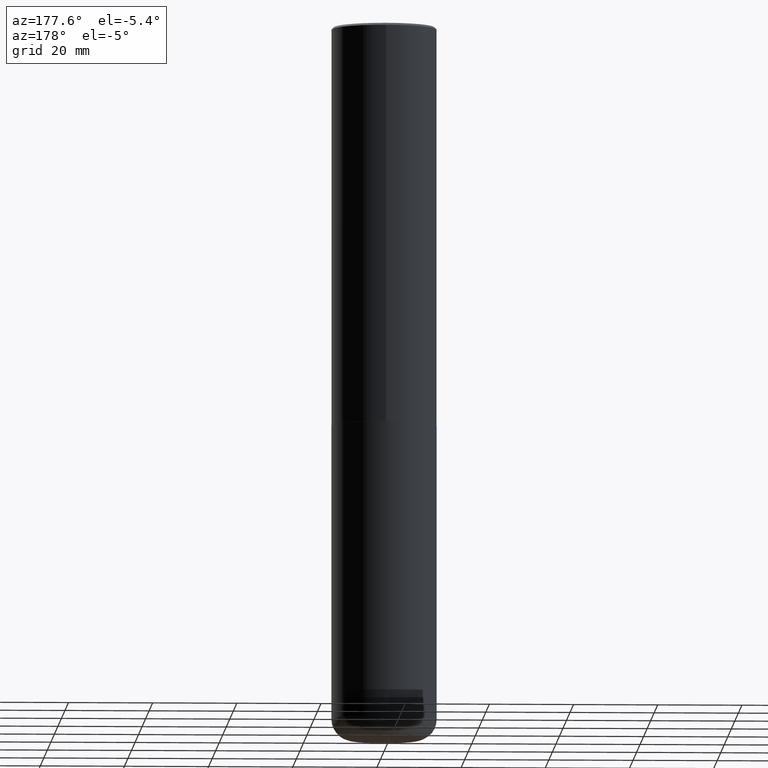
[diagram: clean part render]
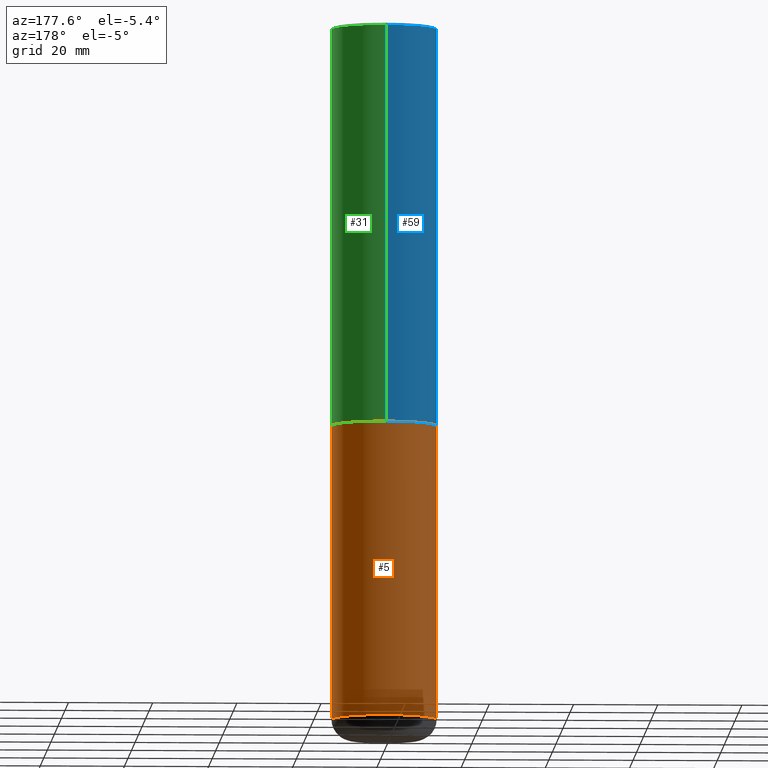
[diagram: same view with three faces highlighted in distinct colors, each labeled with its STEP entity id]
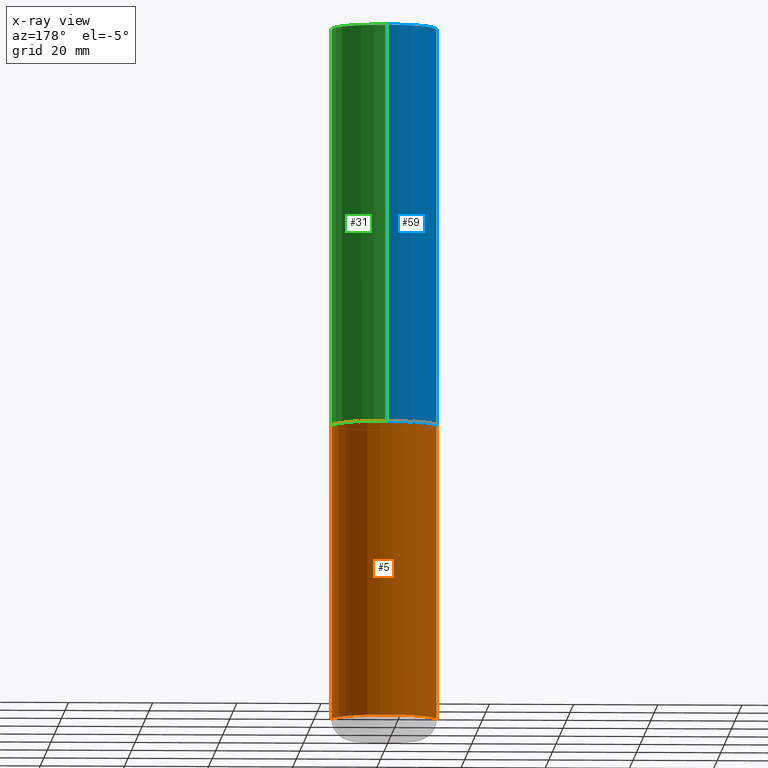
[diagram: x-ray of the same camera — body ghosted, the three highlighted faces saturated]
A machine part, auxiliary view with three faces highlighted in distinct colors.
The next image is the same camera in x-ray (body ghosted, the three faces saturated) — at least one of them is partly hidden behind the body in this view.
Their STEP definitions:

[orange] entity #5 — the highlighted cylindrical surface (partial cylindrical patch) has radius 12.5006 mm, axis along (-0, 0, 1).
#5 = ADVANCED_FACE ( 'NONE', ( #375 ), #343, .T. ) ;
#23 = EDGE_CURVE ( 'NONE', #236, #192, #254, .T. ) ;
#47 = ORIENTED_EDGE ( 'NONE', *, *, #182, .F. ) ;
#51 = DIRECTION ( 'NONE',  ( -2.445468806185136597E-29, 3.491481338843145583E-15, 1.000000000000000000 ) ) ;
#53 = CARTESIAN_POINT ( 'NONE',  ( 0.4921499999999999764, -3.436665081823295777E-15, 2.399810400207969603E-29 ) ) ;
#65 = DIRECTION ( 'NONE',  ( -2.445468806185136597E-29, 3.491481338843145583E-15, 1.000000000000000000 ) ) ;
#69 = DIRECTION ( 'NONE',  ( -2.445468806185136597E-29, 3.491481338843145583E-15, 1.000000000000000000 ) ) ;
#115 = CARTESIAN_POINT ( 'NONE',  ( -0.4921499999999997543, -1.918372670308173998E-14, -6.495999999999999552 ) ) ;
#132 = CARTESIAN_POINT ( 'NONE',  ( -0.4921499999999999764, -1.437263999222282936E-14, -3.740100000000000424 ) ) ;
#137 = DIRECTION ( 'NONE',  ( 1.000000000000000000, -6.982962677686265922E-15, 0.000000000000000000 ) ) ;
#139 = CIRCLE ( 'NONE', #168, 0.4921499999999999764 ) ;
#145 = EDGE_LOOP ( 'NONE', ( #369, #398, #47, #337 ) ) ;
#146 = AXIS2_PLACEMENT_3D ( 'NONE', #411, #51, #222 ) ;
#147 = CARTESIAN_POINT ( 'NONE',  ( 1.588576536497864771E-28, -2.268066277712507367E-14, -6.495999999999999552 ) ) ;
#160 = EDGE_CURVE ( 'NONE', #404, #178, #294, .T. ) ;
#165 = CARTESIAN_POINT ( 'NONE',  ( 0.4921499999999997543, -2.611732785894836787E-14, -6.495999999999999552 ) ) ;
#168 = AXIS2_PLACEMENT_3D ( 'NONE', #197, #65, #137 ) ;
#173 = AXIS2_PLACEMENT_3D ( 'NONE', #147, #69, #239 ) ;
#178 = VERTEX_POINT ( 'NONE', #132 ) ;
#182 = EDGE_CURVE ( 'NONE', #192, #178, #139, .T. ) ;
#185 = DIRECTION ( 'NONE',  ( -2.445468806185136877E-29, 3.491481338843145188E-15, 1.000000000000000000 ) ) ;
#192 = VERTEX_POINT ( 'NONE', #257 ) ;
#197 = CARTESIAN_POINT ( 'NONE',  ( 9.146297882013029477E-29, -1.305848935540725085E-14, -3.740100000000000424 ) ) ;
#222 = DIRECTION ( 'NONE',  ( 1.000000000000000000, -6.982962677686265922E-15, 4.876176775795935793E-29 ) ) ;
#229 = DIRECTION ( 'NONE',  ( -2.445468806185136877E-29, 3.491481338843145188E-15, 1.000000000000000000 ) ) ;
#236 = VERTEX_POINT ( 'NONE', #165 ) ;
#239 = DIRECTION ( 'NONE',  ( 1.000000000000000000, -6.982962677686265922E-15, 0.000000000000000000 ) ) ;
#254 = LINE ( 'NONE', #53, #417 ) ;
#257 = CARTESIAN_POINT ( 'NONE',  ( 0.4921499999999999764, -1.649515443723054663E-14, -3.740100000000000424 ) ) ;
#259 = VECTOR ( 'NONE', #229, 39.37007874015748143 ) ;
#291 = CARTESIAN_POINT ( 'NONE',  ( -0.4921499999999999764, 3.496936074043332897E-15, -2.420853904668951509E-29 ) ) ;
#294 = LINE ( 'NONE', #291, #259 ) ;
#337 = ORIENTED_EDGE ( 'NONE', *, *, #23, .F. ) ;
#343 = CYLINDRICAL_SURFACE ( 'NONE', #146, 0.4921499999999999764 ) ;
#369 = ORIENTED_EDGE ( 'NONE', *, *, #381, .T. ) ;
#375 = FACE_OUTER_BOUND ( 'NONE', #145, .T. ) ;
#381 = EDGE_CURVE ( 'NONE', #236, #404, #392, .T. ) ;
#392 = CIRCLE ( 'NONE', #173, 0.4921499999999999764 ) ;
#398 = ORIENTED_EDGE ( 'NONE', *, *, #160, .T. ) ;
#404 = VERTEX_POINT ( 'NONE', #115 ) ;
#411 = CARTESIAN_POINT ( 'NONE',  ( 0.000000000000000000, 0.000000000000000000, 0.000000000000000000 ) ) ;
#417 = VECTOR ( 'NONE', #185, 39.37007874015748143 ) ;

[blue] entity #59 — the highlighted cylindrical surface (partial cylindrical patch) has radius 12.5006 mm, axis along (-0, 0, 1).
#1 = DIRECTION ( 'NONE',  ( -6.982962677686265922E-15, -1.000000000000000000, 3.486624039460257331E-15 ) ) ;
#27 = CARTESIAN_POINT ( 'NONE',  ( 0.000000000000000000, 0.000000000000000000, 0.000000000000000000 ) ) ;
#35 = CARTESIAN_POINT ( 'NONE',  ( 9.145751084314172604E-29, -1.305227886897706845E-14, -3.739100000000000534 ) ) ;
#58 = DIRECTION ( 'NONE',  ( -6.982962677686265922E-15, -1.000000000000000000, 3.490754157143982552E-15 ) ) ;
#59 = ADVANCED_FACE ( 'NONE', ( #223 ), #156, .T. ) ;
#61 = AXIS2_PLACEMENT_3D ( 'NONE', #27, #284, #58 ) ;
#88 = LINE ( 'NONE', #283, #345 ) ;
#90 = ORIENTED_EDGE ( 'NONE', *, *, #94, .T. ) ;
#94 = EDGE_CURVE ( 'NONE', #316, #371, #314, .T. ) ;
#107 = EDGE_CURVE ( 'NONE', #377, #330, #88, .T. ) ;
#124 = DIRECTION ( 'NONE',  ( -2.445976594451651672E-29, 3.490754157143982552E-15, 1.000000000000000000 ) ) ;
#133 = AXIS2_PLACEMENT_3D ( 'NONE', #35, #258, #388 ) ;
#156 = CYLINDRICAL_SURFACE ( 'NONE', #61, 0.4921500000000000874 ) ;
#212 = ORIENTED_EDGE ( 'NONE', *, *, #256, .F. ) ;
#223 = FACE_OUTER_BOUND ( 'NONE', #244, .T. ) ;
#230 = EDGE_CURVE ( 'NONE', #377, #316, #262, .T. ) ;
#232 = VECTOR ( 'NONE', #255, 39.37007874015748143 ) ;
#235 = CARTESIAN_POINT ( 'NONE',  ( -3.436665081823207030E-15, -0.4921500000000134101, -3.739099999999998758 ) ) ;
#244 = EDGE_LOOP ( 'NONE', ( #271, #267, #90, #212 ) ) ;
#250 = CARTESIAN_POINT ( 'NONE',  ( -3.436665081823296565E-15, -0.4921500000000000874, 1.717974658438411319E-15 ) ) ;
#255 = DIRECTION ( 'NONE',  ( -2.445976594451651672E-29, 3.490754157143982552E-15, 1.000000000000000000 ) ) ;
#256 = EDGE_CURVE ( 'NONE', #330, #371, #364, .T. ) ;
#258 = DIRECTION ( 'NONE',  ( -2.445976594451651952E-29, 3.490754157143982552E-15, 1.000000000000000000 ) ) ;
#262 = CIRCLE ( 'NONE', #133, 0.4921500000000003650 ) ;
#266 = CARTESIAN_POINT ( 'NONE',  ( 3.436665081823295777E-15, 0.4921499999999998098, -0.02000000000000182188 ) ) ;
#267 = ORIENTED_EDGE ( 'NONE', *, *, #230, .T. ) ;
#271 = ORIENTED_EDGE ( 'NONE', *, *, #107, .F. ) ;
#283 = CARTESIAN_POINT ( 'NONE',  ( 3.496936074043333291E-15, 0.4921500000000000874, -1.717974658438411319E-15 ) ) ;
#284 = DIRECTION ( 'NONE',  ( -2.445976594451651952E-29, 3.490754157143982552E-15, 1.000000000000000000 ) ) ;
#288 = DIRECTION ( 'NONE',  ( -2.445976594451651952E-29, 3.490754157143982552E-15, 1.000000000000000000 ) ) ;
#292 = AXIS2_PLACEMENT_3D ( 'NONE', #320, #288, #1 ) ;
#314 = LINE ( 'NONE', #250, #232 ) ;
#316 = VERTEX_POINT ( 'NONE', #235 ) ;
#320 = CARTESIAN_POINT ( 'NONE',  ( 4.891953188903329688E-31, -6.981508314288001687E-17, -0.02000000000000010797 ) ) ;
#330 = VERTEX_POINT ( 'NONE', #266 ) ;
#345 = VECTOR ( 'NONE', #124, 39.37007874015748143 ) ;
#364 = CIRCLE ( 'NONE', #292, 0.4921499999999999209 ) ;
#366 = CARTESIAN_POINT ( 'NONE',  ( -3.376394089603257868E-15, -0.4921499999999999764, -0.01999999999999839059 ) ) ;
#368 = CARTESIAN_POINT ( 'NONE',  ( 3.496936074043380229E-15, 0.4921499999999873198, -3.739100000000002311 ) ) ;
#371 = VERTEX_POINT ( 'NONE', #366 ) ;
#377 = VERTEX_POINT ( 'NONE', #368 ) ;
#388 = DIRECTION ( 'NONE',  ( -6.982962677686265922E-15, -1.000000000000000000, 3.330506545156063496E-15 ) ) ;

[green] entity #31 — the highlighted cylindrical surface (partial cylindrical patch) has radius 12.5006 mm, axis along (-0, 0, 1).
#31 = ADVANCED_FACE ( 'NONE', ( #380 ), #86, .T. ) ;
#40 = ORIENTED_EDGE ( 'NONE', *, *, #94, .F. ) ;
#62 = DIRECTION ( 'NONE',  ( -6.982962677686265922E-15, -1.000000000000000000, 3.486624039460257331E-15 ) ) ;
#70 = DIRECTION ( 'NONE',  ( -6.982962677686265922E-15, -1.000000000000000000, 3.330506545156063496E-15 ) ) ;
#76 = ORIENTED_EDGE ( 'NONE', *, *, #107, .T. ) ;
#82 = EDGE_LOOP ( 'NONE', ( #340, #76, #311, #40 ) ) ;
#86 = CYLINDRICAL_SURFACE ( 'NONE', #104, 0.4921500000000000874 ) ;
#88 = LINE ( 'NONE', #283, #345 ) ;
#94 = EDGE_CURVE ( 'NONE', #316, #371, #314, .T. ) ;
#104 = AXIS2_PLACEMENT_3D ( 'NONE', #224, #161, #350 ) ;
#106 = CARTESIAN_POINT ( 'NONE',  ( 4.891953188903329688E-31, -6.981508314288001687E-17, -0.02000000000000010797 ) ) ;
#107 = EDGE_CURVE ( 'NONE', #377, #330, #88, .T. ) ;
#119 = AXIS2_PLACEMENT_3D ( 'NONE', #106, #202, #62 ) ;
#124 = DIRECTION ( 'NONE',  ( -2.445976594451651672E-29, 3.490754157143982552E-15, 1.000000000000000000 ) ) ;
#161 = DIRECTION ( 'NONE',  ( -2.445976594451651952E-29, 3.490754157143982552E-15, 1.000000000000000000 ) ) ;
#170 = EDGE_CURVE ( 'NONE', #371, #330, #306, .T. ) ;
#202 = DIRECTION ( 'NONE',  ( -2.445976594451651952E-29, 3.490754157143982552E-15, 1.000000000000000000 ) ) ;
#211 = CARTESIAN_POINT ( 'NONE',  ( 9.145751084314172604E-29, -1.305227886897706845E-14, -3.739100000000000534 ) ) ;
#224 = CARTESIAN_POINT ( 'NONE',  ( 0.000000000000000000, 0.000000000000000000, 0.000000000000000000 ) ) ;
#232 = VECTOR ( 'NONE', #255, 39.37007874015748143 ) ;
#235 = CARTESIAN_POINT ( 'NONE',  ( -3.436665081823207030E-15, -0.4921500000000134101, -3.739099999999998758 ) ) ;
#250 = CARTESIAN_POINT ( 'NONE',  ( -3.436665081823296565E-15, -0.4921500000000000874, 1.717974658438411319E-15 ) ) ;
#255 = DIRECTION ( 'NONE',  ( -2.445976594451651672E-29, 3.490754157143982552E-15, 1.000000000000000000 ) ) ;
#266 = CARTESIAN_POINT ( 'NONE',  ( 3.436665081823295777E-15, 0.4921499999999998098, -0.02000000000000182188 ) ) ;
#283 = CARTESIAN_POINT ( 'NONE',  ( 3.496936074043333291E-15, 0.4921500000000000874, -1.717974658438411319E-15 ) ) ;
#285 = AXIS2_PLACEMENT_3D ( 'NONE', #211, #393, #70 ) ;
#306 = CIRCLE ( 'NONE', #119, 0.4921499999999999209 ) ;
#307 = EDGE_CURVE ( 'NONE', #316, #377, #357, .T. ) ;
#311 = ORIENTED_EDGE ( 'NONE', *, *, #170, .F. ) ;
#314 = LINE ( 'NONE', #250, #232 ) ;
#316 = VERTEX_POINT ( 'NONE', #235 ) ;
#330 = VERTEX_POINT ( 'NONE', #266 ) ;
#340 = ORIENTED_EDGE ( 'NONE', *, *, #307, .T. ) ;
#345 = VECTOR ( 'NONE', #124, 39.37007874015748143 ) ;
#350 = DIRECTION ( 'NONE',  ( -6.982962677686265922E-15, -1.000000000000000000, 3.490754157143982552E-15 ) ) ;
#357 = CIRCLE ( 'NONE', #285, 0.4921500000000003650 ) ;
#366 = CARTESIAN_POINT ( 'NONE',  ( -3.376394089603257868E-15, -0.4921499999999999764, -0.01999999999999839059 ) ) ;
#368 = CARTESIAN_POINT ( 'NONE',  ( 3.496936074043380229E-15, 0.4921499999999873198, -3.739100000000002311 ) ) ;
#371 = VERTEX_POINT ( 'NONE', #366 ) ;
#377 = VERTEX_POINT ( 'NONE', #368 ) ;
#380 = FACE_OUTER_BOUND ( 'NONE', #82, .T. ) ;
#393 = DIRECTION ( 'NONE',  ( -2.445976594451651952E-29, 3.490754157143982552E-15, 1.000000000000000000 ) ) ;